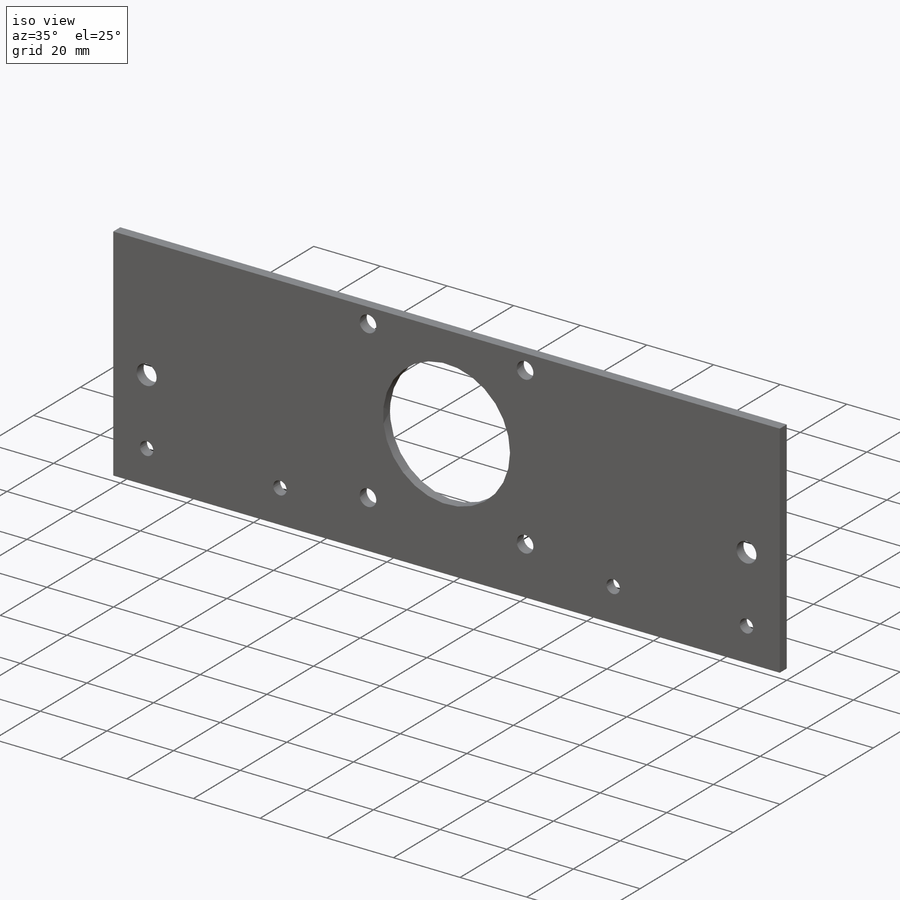
[diagram: iso view]
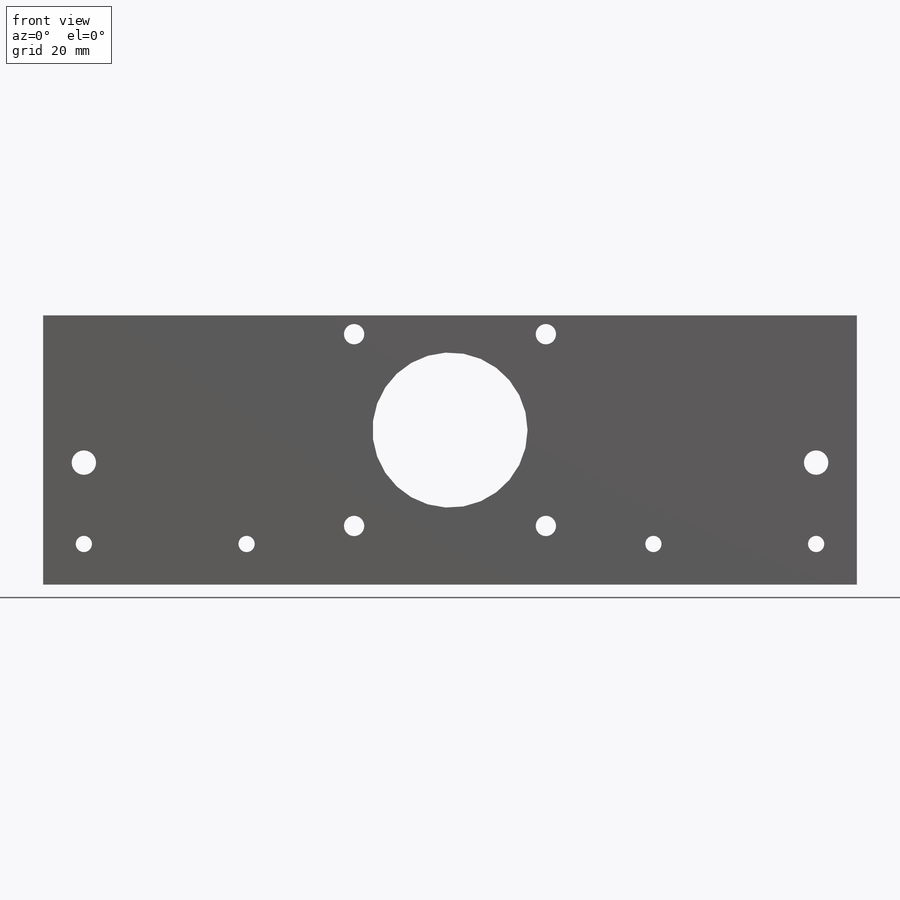
[diagram: front view]
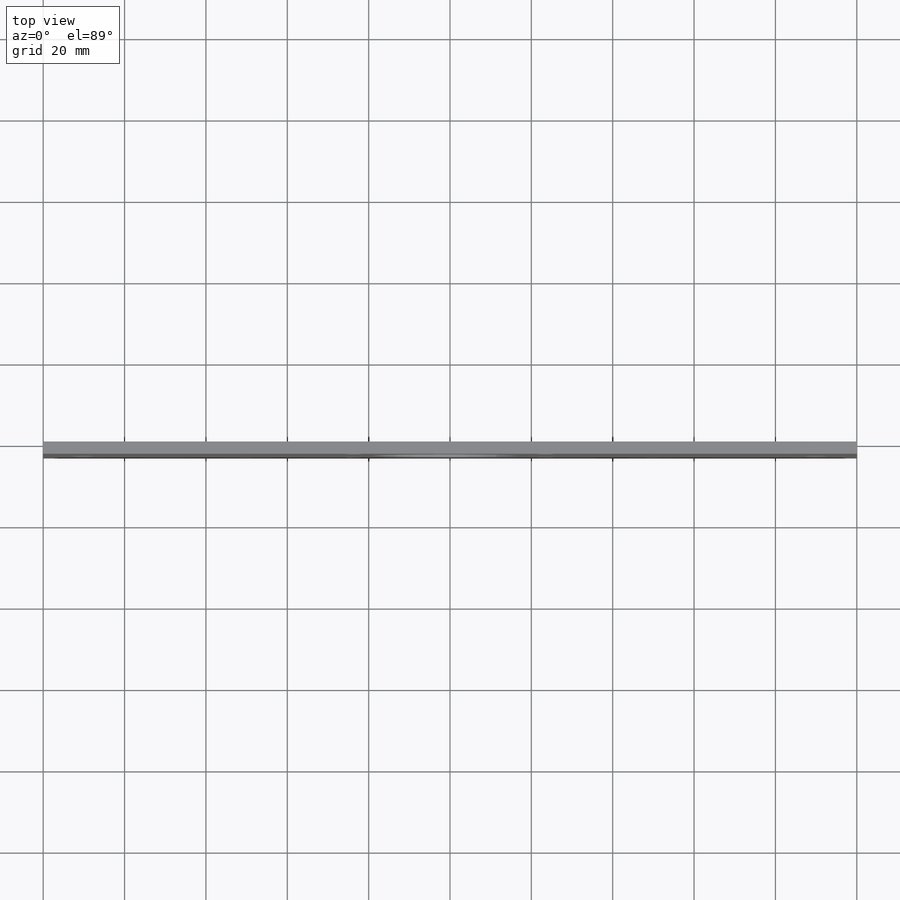
[diagram: top view]
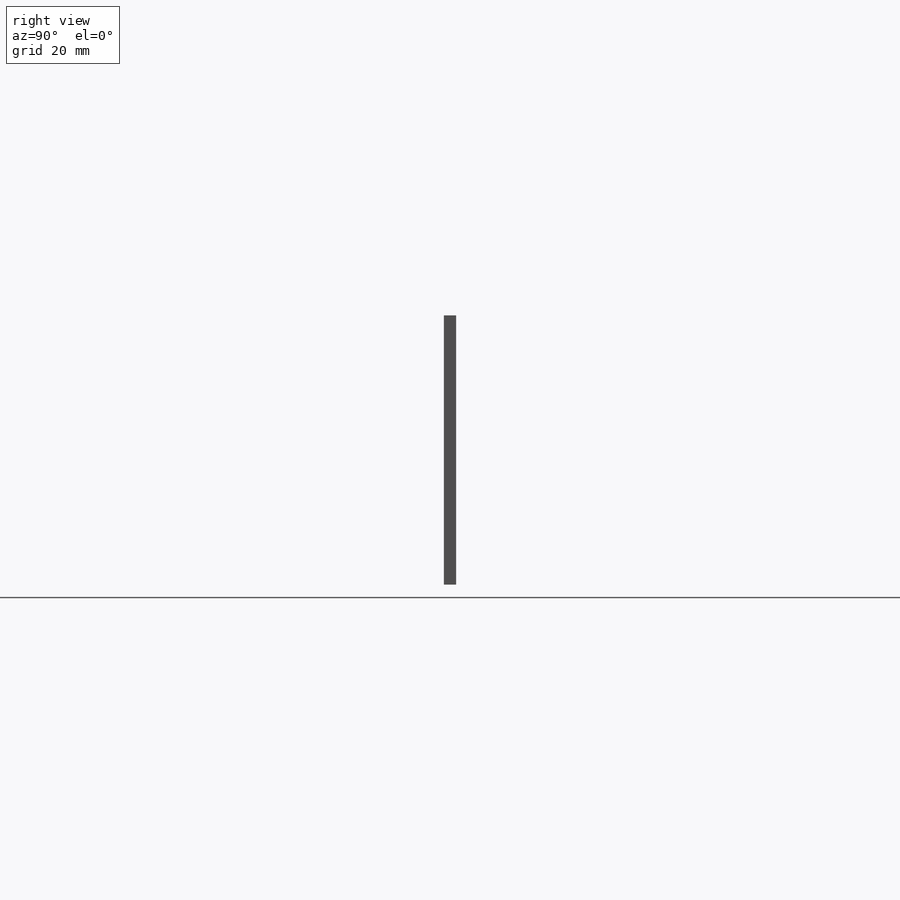
[diagram: right view]
SOLIDWORKS PART (.sldprt)
format: sldprt  version: not decoded by parser v0  size: 218,624 bytes
history: native  units: mm
features: sketch x5, cut_extrude x4, plane x3, material x1, extrude x1 (+9 scaffold rows collapsed)
feature tree (23):
  scaffold x9  (default folders/planes/origin — collapsed)
  material  "Material <nicht festgelegt>"
  plane  "Ebene vorne"
  plane  "Ebene oben"
  plane  "Ebene rechts"
  sketch  "Skizze1"  dims[D1=200.0mm D2=66.2mm]
  extrude  "Aufsatz-Linear austragen1"  Depth=3mm
  sketch  "Skizze2"  dims[c1.D1=38.125mm c1.D3=~42.179641mm c1.D2=38.0mm c2.D3=100.0mm]
  cut_extrude  "Schnitt-Linear austragen1"  Depth=24mm
  sketch  "Skizze3"  dims[D1=4.0mm D2=10.0mm D3=10.0mm D4=10.0mm D5=50.0mm D6=50.0mm D7=80.0mm D8=80.0mm]
  cut_extrude  "Schnitt-Linear austragen2"  Depth=10mm
  sketch  "Skizze4"  dims[D3=6.0mm D1=10.0mm D2=10.0mm D4=30.0mm]
  cut_extrude  "Schnitt-Linear austragen3"  Depth=10mm
  sketch  "Skizze5"  dims[D1=5.0mm D2=76.43mm D3=47.14mm D4=4.63mm D5=47.14mm]
  cut_extrude  "Schnitt-Linear austragen4"  Depth=10mm
decode coverage: 10 of 10 modeling features carry decoded parameters
note: ~ marks probable driven/reference dimensions
note: suppression state not decoded; provenance and decode notes live in map.json
